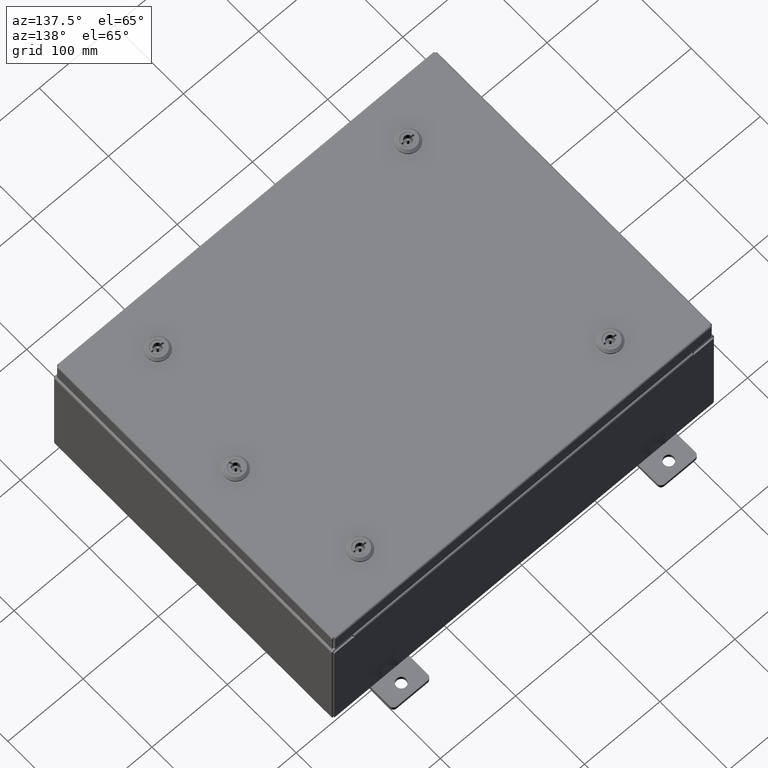
[diagram: clean part render]
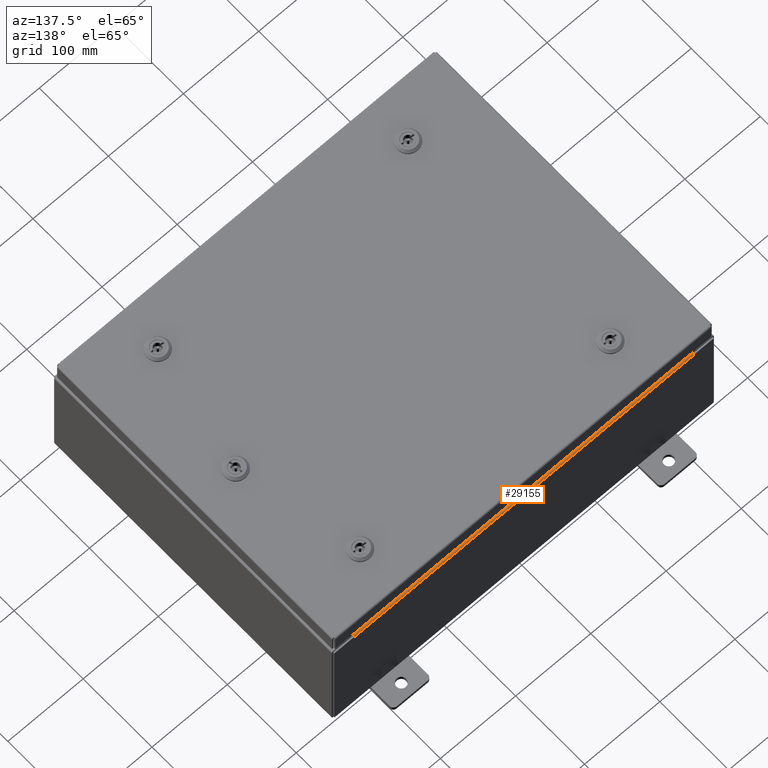
[diagram: same view with one face highlighted and labeled with its STEP entity id]
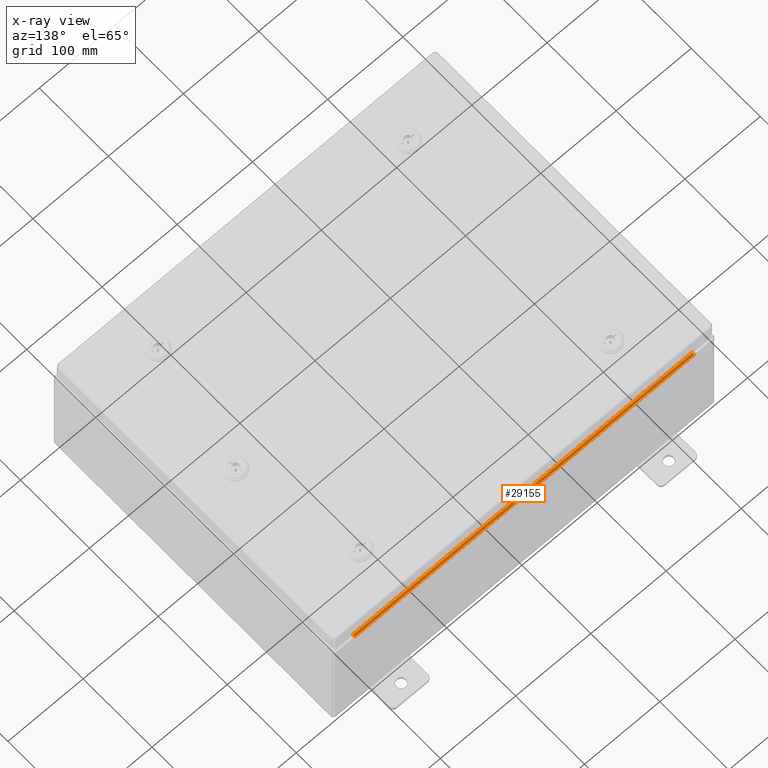
[diagram: x-ray of the same camera — body ghosted, the highlighted face saturated]
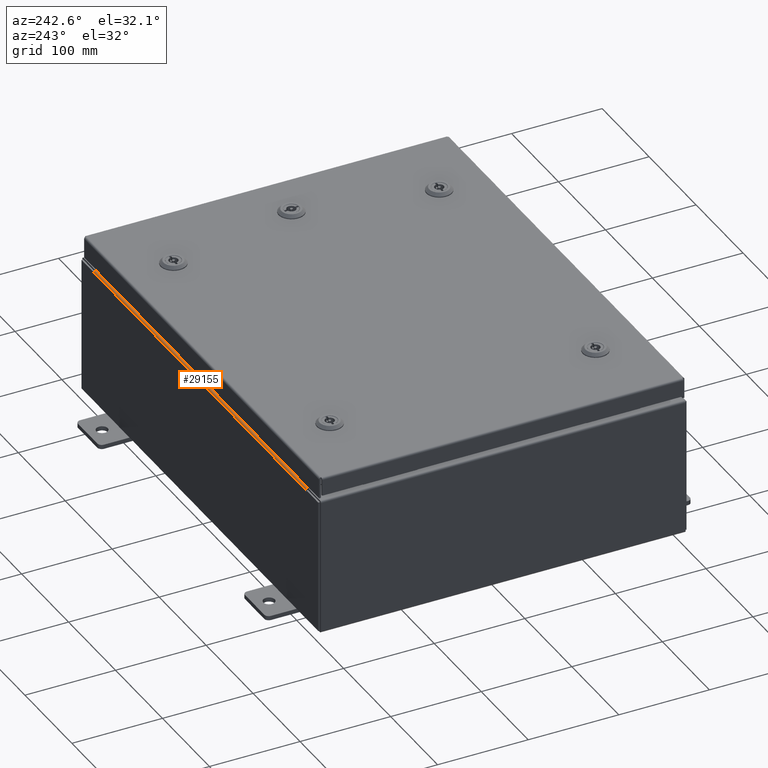
[diagram: same view with one face highlighted and labeled with its STEP entity id]
A machine part, auxiliary view. The second image highlights one B-rep face of the part: STEP entity #29155.
The next image is the same camera in x-ray: the body ghosted, the highlighted face saturated — about 0% of this face is hidden behind the body in this view.
A second angle (auxiliary view) of the same face is appended — the face is thin or edge-on in the first view.
In plain terms, the highlighted cylindrical surface (edge-blend (fillet) strip) has radius 2.2276 mm, axis along (-1, -0, -0).
Its self-contained STEP definition (entity closure, byte-faithful):
#1775 = CARTESIAN_POINT ( 'NONE',  ( 8.887200000000000000, 0.0000000000000000000, 2.912300000000000600 ) ) ;
#2256 = DIRECTION ( 'NONE',  ( 0.0000000000000000000, 3.309679011708404900E-015, 1.000000000000000000 ) ) ;
#4293 = FACE_OUTER_BOUND ( 'NONE', #51370, .T. ) ;
#7961 = AXIS2_PLACEMENT_3D ( 'NONE', #41546, #60609, #2256 ) ;
#8031 = CARTESIAN_POINT ( 'NONE',  ( 8.887200000000000000, -0.08769999999999965300, 3.000000000000000900 ) ) ;
#11053 = EDGE_CURVE ( 'NONE', #52447, #22443, #45056, .T. ) ;
#11149 = EDGE_CURVE ( 'NONE', #33211, #52447, #19334, .T. ) ;
#14316 = CYLINDRICAL_SURFACE ( 'NONE', #7961, 0.08770000000000026400 ) ;
#15900 = VERTEX_POINT ( 'NONE', #53511 ) ;
#19334 = LINE ( 'NONE', #42204, #53259 ) ;
#22443 = VERTEX_POINT ( 'NONE', #8031 ) ;
#22866 = CARTESIAN_POINT ( 'NONE',  ( -8.887200000000000000, 1.024442997624098700E-016, 2.912300000000000600 ) ) ;
#26850 = AXIS2_PLACEMENT_3D ( 'NONE', #57863, #29108, #62703 ) ;
#29108 = DIRECTION ( 'NONE',  ( -1.000000000000000000, -0.0000000000000000000, -0.0000000000000000000 ) ) ;
#29155 = ADVANCED_FACE ( 'NONE', ( #4293 ), #14316, .T. ) ;
#29629 = CIRCLE ( 'NONE', #26850, 0.08770000000000026400 ) ;
#33211 = VERTEX_POINT ( 'NONE', #22866 ) ;
#34795 = ORIENTED_EDGE ( 'NONE', *, *, #11053, .F. ) ;
#35722 = ORIENTED_EDGE ( 'NONE', *, *, #11149, .F. ) ;
#37552 = AXIS2_PLACEMENT_3D ( 'NONE', #46324, #46316, #46269 ) ;
#41546 = CARTESIAN_POINT ( 'NONE',  ( -8.887200000000000000, -0.08770000000000000000, 2.912300000000000600 ) ) ;
#41717 = DIRECTION ( 'NONE',  ( 1.000000000000000000, 0.0000000000000000000, 0.0000000000000000000 ) ) ;
#42071 = DIRECTION ( 'NONE',  ( -1.000000000000000000, 3.073913036349203400E-017, -1.032898297792004500E-031 ) ) ;
#42204 = CARTESIAN_POINT ( 'NONE',  ( -8.887200000000000000, 1.024442997624098700E-016, 2.912300000000000600 ) ) ;
#42897 = ORIENTED_EDGE ( 'NONE', *, *, #47322, .F. ) ;
#43015 = EDGE_CURVE ( 'NONE', #22443, #15900, #58422, .T. ) ;
#44759 = ORIENTED_EDGE ( 'NONE', *, *, #43015, .F. ) ;
#45056 = CIRCLE ( 'NONE', #37552, 0.08770000000000026400 ) ;
#46269 = DIRECTION ( 'NONE',  ( 0.0000000000000000000, -1.752183006198567300E-015, 1.000000000000000000 ) ) ;
#46316 = DIRECTION ( 'NONE',  ( 1.000000000000000000, 0.0000000000000000000, 0.0000000000000000000 ) ) ;
#46324 = CARTESIAN_POINT ( 'NONE',  ( 8.887200000000000000, -0.08770000000000000000, 2.912300000000000600 ) ) ;
#47322 = EDGE_CURVE ( 'NONE', #15900, #33211, #29629, .T. ) ;
#51370 = EDGE_LOOP ( 'NONE', ( #35722, #42897, #44759, #34795 ) ) ;
#52447 = VERTEX_POINT ( 'NONE', #1775 ) ;
#53259 = VECTOR ( 'NONE', #41717, 39.37007874015748100 ) ;
#53511 = CARTESIAN_POINT ( 'NONE',  ( -8.887200000000000000, -0.08770000000000000000, 3.000000000000000900 ) ) ;
#56926 = VECTOR ( 'NONE', #42071, 39.37007874015748100 ) ;
#57863 = CARTESIAN_POINT ( 'NONE',  ( -8.887200000000000000, -0.08770000000000000000, 2.912300000000000600 ) ) ;
#58422 = LINE ( 'NONE', #61544, #56926 ) ;
#60609 = DIRECTION ( 'NONE',  ( -1.000000000000000000, -0.0000000000000000000, -0.0000000000000000000 ) ) ;
#61544 = CARTESIAN_POINT ( 'NONE',  ( -2.695821732878561900E-018, -0.08770000000000000000, 3.000000000000001300 ) ) ;
#62703 = DIRECTION ( 'NONE',  ( 0.0000000000000000000, 0.0000000000000000000, 1.000000000000000000 ) ) ;